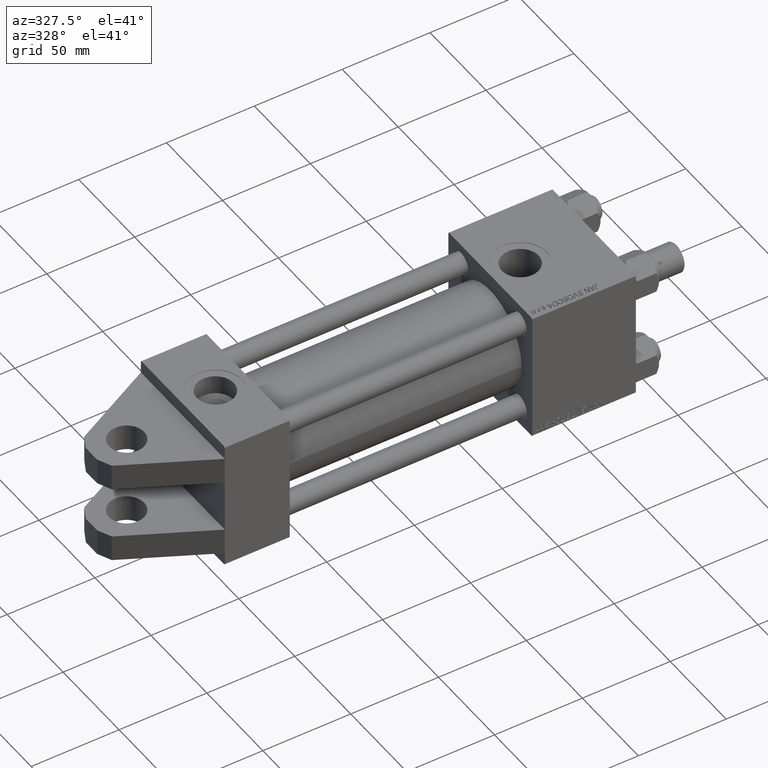
[diagram: clean part render]
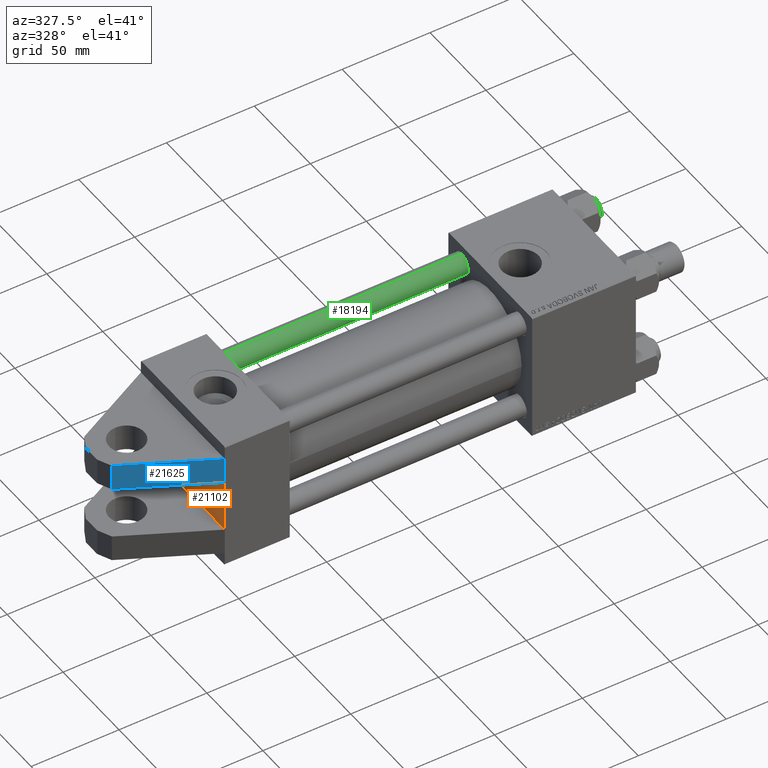
[diagram: same view with three faces highlighted in distinct colors, each labeled with its STEP entity id]
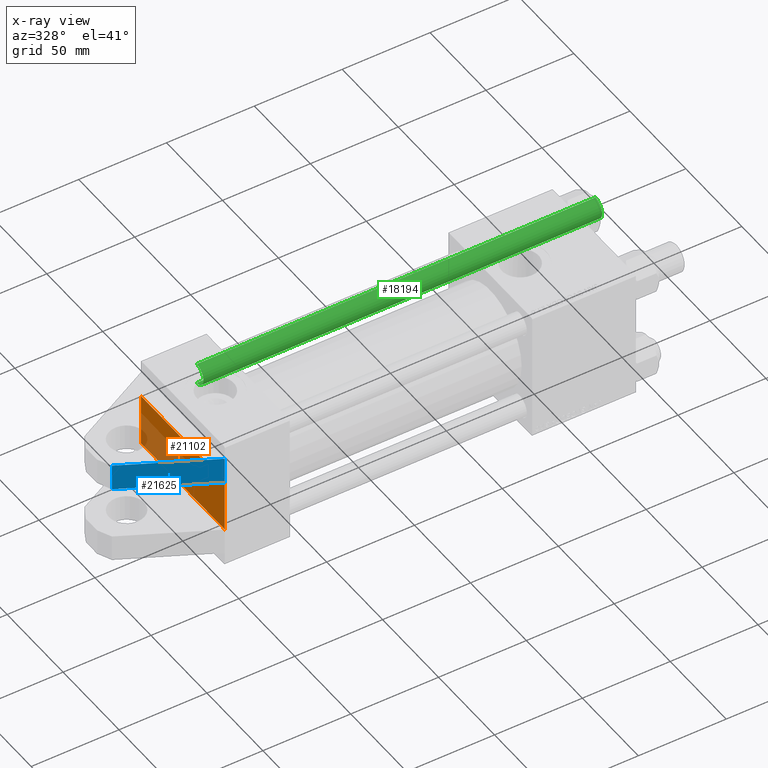
[diagram: x-ray of the same camera — body ghosted, the three highlighted faces saturated]
A machine part, auxiliary view with three faces highlighted in distinct colors.
The next image is the same camera in x-ray (body ghosted, the three faces saturated) — at least one of them is partly hidden behind the body in this view.
Their STEP definitions:

[orange] entity #21102 — the highlighted planar face has unit normal (-1, 0, -0).
#773 = CARTESIAN_POINT ( 'NONE',  ( 0.000000000000000000, 37.49999999999999289, 37.50000000000000000 ) ) ;
#2028 = DIRECTION ( 'NONE',  ( 0.000000000000000000, 0.000000000000000000, -1.000000000000000000 ) ) ;
#3004 = VERTEX_POINT ( 'NONE', #10784 ) ;
#3456 = ORIENTED_EDGE ( 'NONE', *, *, #20641, .F. ) ;
#4871 = VECTOR ( 'NONE', #2028, 1000.000000000000000 ) ;
#6548 = ORIENTED_EDGE ( 'NONE', *, *, #14387, .T. ) ;
#7422 = CARTESIAN_POINT ( 'NONE',  ( 0.000000000000000000, -15.00000000000000000, 37.49999999999999289 ) ) ;
#7621 = DIRECTION ( 'NONE',  ( -0.000000000000000000, 0.000000000000000000, 1.000000000000000000 ) ) ;
#7983 = AXIS2_PLACEMENT_3D ( 'NONE', #28740, #28205, #7621 ) ;
#8666 = FACE_OUTER_BOUND ( 'NONE', #37384, .T. ) ;
#8670 = LINE ( 'NONE', #773, #48037 ) ;
#10760 = CARTESIAN_POINT ( 'NONE',  ( 0.000000000000000000, 37.49999999999999289, -37.50000000000000000 ) ) ;
#10784 = CARTESIAN_POINT ( 'NONE',  ( 0.000000000000000000, 15.00000000000000000, 37.50000000000000000 ) ) ;
#11243 = CARTESIAN_POINT ( 'NONE',  ( 0.000000000000000000, 15.00000000000000000, -37.50000000000000000 ) ) ;
#12817 = LINE ( 'NONE', #45788, #14684 ) ;
#14387 = EDGE_CURVE ( 'NONE', #3004, #23934, #14417, .T. ) ;
#14417 = LINE ( 'NONE', #22091, #4871 ) ;
#14684 = VECTOR ( 'NONE', #29184, 1000.000000000000000 ) ;
#19207 = LINE ( 'NONE', #10760, #31789 ) ;
#20641 = EDGE_CURVE ( 'NONE', #48177, #26656, #12817, .T. ) ;
#21102 = ADVANCED_FACE ( 'NONE', ( #8666 ), #24253, .T. ) ;
#22091 = CARTESIAN_POINT ( 'NONE',  ( 0.000000000000000000, 15.00000000000000000, 37.49999999999999289 ) ) ;
#23934 = VERTEX_POINT ( 'NONE', #11243 ) ;
#24253 = PLANE ( 'NONE',  #7983 ) ;
#25577 = CARTESIAN_POINT ( 'NONE',  ( 0.000000000000000000, -15.00000000000000000, -37.50000000000000711 ) ) ;
#26656 = VERTEX_POINT ( 'NONE', #25577 ) ;
#28205 = DIRECTION ( 'NONE',  ( -1.000000000000000000, 0.000000000000000000, -0.000000000000000000 ) ) ;
#28740 = CARTESIAN_POINT ( 'NONE',  ( 0.000000000000000000, 0.000000000000000000, 0.000000000000000000 ) ) ;
#29184 = DIRECTION ( 'NONE',  ( 0.000000000000000000, 0.000000000000000000, -1.000000000000000000 ) ) ;
#30266 = EDGE_CURVE ( 'NONE', #23934, #26656, #19207, .T. ) ;
#31789 = VECTOR ( 'NONE', #38734, 1000.000000000000000 ) ;
#34506 = DIRECTION ( 'NONE',  ( 0.000000000000000000, -1.000000000000000000, -9.251858538542971581E-17 ) ) ;
#37384 = EDGE_LOOP ( 'NONE', ( #46541, #3456, #49510, #6548 ) ) ;
#38734 = DIRECTION ( 'NONE',  ( 0.000000000000000000, -1.000000000000000000, -9.251858538542972814E-17 ) ) ;
#45788 = CARTESIAN_POINT ( 'NONE',  ( 0.000000000000000000, -15.00000000000000000, 37.49999999999999289 ) ) ;
#46541 = ORIENTED_EDGE ( 'NONE', *, *, #30266, .T. ) ;
#48037 = VECTOR ( 'NONE', #34506, 1000.000000000000000 ) ;
#48177 = VERTEX_POINT ( 'NONE', #7422 ) ;
#49510 = ORIENTED_EDGE ( 'NONE', *, *, #49753, .F. ) ;
#49753 = EDGE_CURVE ( 'NONE', #3004, #48177, #8670, .T. ) ;

[blue] entity #21625 — the highlighted planar face has unit normal (-0.4566, -0.8897, -0).
#1498 = DIRECTION ( 'NONE',  ( -0.8896669897448514774, 0.000000000000000000, 0.4566099510066927158 ) ) ;
#1560 = DIRECTION ( 'NONE',  ( -0.000000000000000000, 1.000000000000000000, -0.000000000000000000 ) ) ;
#4067 = DIRECTION ( 'NONE',  ( -0.4566099510066927158, 0.000000000000000000, -0.8896669897448514774 ) ) ;
#4241 = VERTEX_POINT ( 'NONE', #22970 ) ;
#4766 = EDGE_CURVE ( 'NONE', #46008, #39598, #26025, .T. ) ;
#5253 = CARTESIAN_POINT ( 'NONE',  ( 0.000000000000000000, -30.00000000000000000, -37.50000000000000711 ) ) ;
#7596 = VECTOR ( 'NONE', #24002, 1000.000000000000000 ) ;
#8014 = FACE_OUTER_BOUND ( 'NONE', #39154, .T. ) ;
#10624 = CARTESIAN_POINT ( 'NONE',  ( -48.43732805352595960, -30.00000000000000000, -12.64017464471899110 ) ) ;
#15831 = ORIENTED_EDGE ( 'NONE', *, *, #4766, .T. ) ;
#19952 = CARTESIAN_POINT ( 'NONE',  ( 0.000000000000000000, -30.00000000000000000, -37.50000000000000711 ) ) ;
#20050 = LINE ( 'NONE', #44325, #7596 ) ;
#21363 = LINE ( 'NONE', #33488, #32847 ) ;
#21560 = CARTESIAN_POINT ( 'NONE',  ( -48.43732805352595960, -30.00000000000000000, -12.64017464471899110 ) ) ;
#21625 = ADVANCED_FACE ( 'NONE', ( #8014 ), #24129, .T. ) ;
#22970 = CARTESIAN_POINT ( 'NONE',  ( -48.43732805352595960, -15.00000000000000000, -12.64017464471899110 ) ) ;
#24002 = DIRECTION ( 'NONE',  ( -0.000000000000000000, 1.000000000000000000, -0.000000000000000000 ) ) ;
#24007 = AXIS2_PLACEMENT_3D ( 'NONE', #40217, #4067, #40482 ) ;
#24129 = PLANE ( 'NONE',  #24007 ) ;
#25577 = CARTESIAN_POINT ( 'NONE',  ( 0.000000000000000000, -15.00000000000000000, -37.50000000000000711 ) ) ;
#26025 = LINE ( 'NONE', #21560, #35782 ) ;
#26656 = VERTEX_POINT ( 'NONE', #25577 ) ;
#28523 = VECTOR ( 'NONE', #1560, 1000.000000000000000 ) ;
#32847 = VECTOR ( 'NONE', #38478, 1000.000000000000000 ) ;
#33488 = CARTESIAN_POINT ( 'NONE',  ( -48.43732805352595960, -15.00000000000000000, -12.64017464471899110 ) ) ;
#35500 = ORIENTED_EDGE ( 'NONE', *, *, #50646, .T. ) ;
#35782 = VECTOR ( 'NONE', #1498, 1000.000000000000000 ) ;
#36032 = EDGE_CURVE ( 'NONE', #26656, #4241, #21363, .T. ) ;
#36124 = EDGE_CURVE ( 'NONE', #46008, #26656, #41417, .T. ) ;
#38478 = DIRECTION ( 'NONE',  ( -0.8896669897448514774, 0.000000000000000000, 0.4566099510066927158 ) ) ;
#39154 = EDGE_LOOP ( 'NONE', ( #51445, #43886, #15831, #35500 ) ) ;
#39598 = VERTEX_POINT ( 'NONE', #10624 ) ;
#40217 = CARTESIAN_POINT ( 'NONE',  ( -48.43732805352595960, -30.00000000000000000, -12.64017464471899110 ) ) ;
#40482 = DIRECTION ( 'NONE',  ( -0.8896669897448514774, 0.000000000000000000, 0.4566099510066927158 ) ) ;
#41417 = LINE ( 'NONE', #5253, #28523 ) ;
#43886 = ORIENTED_EDGE ( 'NONE', *, *, #36124, .F. ) ;
#44325 = CARTESIAN_POINT ( 'NONE',  ( -48.43732805352595960, -30.00000000000000000, -12.64017464471899110 ) ) ;
#46008 = VERTEX_POINT ( 'NONE', #19952 ) ;
#50646 = EDGE_CURVE ( 'NONE', #39598, #4241, #20050, .T. ) ;
#51445 = ORIENTED_EDGE ( 'NONE', *, *, #36032, .F. ) ;

[green] entity #18194 — the highlighted cylindrical surface (edge-blend (fillet) strip) has radius 6 mm, axis along (-1, 0, -0).
#394 = VERTEX_POINT ( 'NONE', #45058 ) ;
#1979 = EDGE_CURVE ( 'NONE', #25581, #31529, #51469, .T. ) ;
#5654 = DIRECTION ( 'NONE',  ( 1.000000000000000000, 0.000000000000000000, 0.000000000000000000 ) ) ;
#8231 = ORIENTED_EDGE ( 'NONE', *, *, #30016, .T. ) ;
#8364 = ORIENTED_EDGE ( 'NONE', *, *, #10932, .T. ) ;
#8731 = ORIENTED_EDGE ( 'NONE', *, *, #24014, .T. ) ;
#10932 = EDGE_CURVE ( 'NONE', #25581, #394, #24033, .T. ) ;
#12396 = CIRCLE ( 'NONE', #37666, 6.000000000000000888 ) ;
#12918 = CARTESIAN_POINT ( 'NONE',  ( 0.000000000000000000, 0.000000000000000000, 0.5000000000001947331 ) ) ;
#18194 = ADVANCED_FACE ( 'NONE', ( #21785 ), #25747, .T. ) ;
#19871 = VECTOR ( 'NONE', #27879, 1000.000000000000000 ) ;
#20589 = DIRECTION ( 'NONE',  ( 1.000000000000000000, 0.000000000000000000, 0.000000000000000000 ) ) ;
#21313 = VERTEX_POINT ( 'NONE', #24977 ) ;
#21785 = FACE_OUTER_BOUND ( 'NONE', #36742, .T. ) ;
#24014 = EDGE_CURVE ( 'NONE', #394, #21313, #35013, .T. ) ;
#24033 = CIRCLE ( 'NONE', #40075, 6.000000000000000888 ) ;
#24977 = CARTESIAN_POINT ( 'NONE',  ( -6.000000000000000888, 0.000000000000000000, 0.5000000000001947331 ) ) ;
#25403 = ORIENTED_EDGE ( 'NONE', *, *, #1979, .F. ) ;
#25581 = VERTEX_POINT ( 'NONE', #47296 ) ;
#25747 = CYLINDRICAL_SURFACE ( 'NONE', #29794, 6.000000000000000888 ) ;
#27879 = DIRECTION ( 'NONE',  ( -0.000000000000000000, -0.000000000000000000, -1.000000000000000000 ) ) ;
#28466 = DIRECTION ( 'NONE',  ( 0.000000000000000000, 0.000000000000000000, -1.000000000000000000 ) ) ;
#29794 = AXIS2_PLACEMENT_3D ( 'NONE', #33651, #41834, #37870 ) ;
#30016 = EDGE_CURVE ( 'NONE', #21313, #31529, #12396, .T. ) ;
#31529 = VERTEX_POINT ( 'NONE', #49476 ) ;
#32192 = DIRECTION ( 'NONE',  ( -0.000000000000000000, -0.000000000000000000, 1.000000000000000000 ) ) ;
#33651 = CARTESIAN_POINT ( 'NONE',  ( 0.000000000000000000, 0.000000000000000000, 228.0000000000000000 ) ) ;
#35013 = LINE ( 'NONE', #51619, #19871 ) ;
#35387 = DIRECTION ( 'NONE',  ( -0.000000000000000000, -0.000000000000000000, -1.000000000000000000 ) ) ;
#36742 = EDGE_LOOP ( 'NONE', ( #25403, #8364, #8731, #8231 ) ) ;
#37666 = AXIS2_PLACEMENT_3D ( 'NONE', #12918, #32192, #20589 ) ;
#37870 = DIRECTION ( 'NONE',  ( -1.000000000000000000, 0.000000000000000000, 0.000000000000000000 ) ) ;
#40075 = AXIS2_PLACEMENT_3D ( 'NONE', #44301, #28466, #5654 ) ;
#41834 = DIRECTION ( 'NONE',  ( -0.000000000000000000, -0.000000000000000000, -1.000000000000000000 ) ) ;
#44301 = CARTESIAN_POINT ( 'NONE',  ( 0.000000000000000000, 0.000000000000000000, 227.5000000000000853 ) ) ;
#45058 = CARTESIAN_POINT ( 'NONE',  ( -6.000000000000000888, 0.000000000000000000, 227.5000000000000853 ) ) ;
#47296 = CARTESIAN_POINT ( 'NONE',  ( 6.000000000000000888, 7.347880794884119736E-16, 227.5000000000000853 ) ) ;
#47793 = CARTESIAN_POINT ( 'NONE',  ( 6.000000000000000888, 7.347880794884119736E-16, 228.0000000000000000 ) ) ;
#49476 = CARTESIAN_POINT ( 'NONE',  ( 6.000000000000000888, 7.347880794884119736E-16, 0.5000000000001947331 ) ) ;
#51469 = LINE ( 'NONE', #47793, #51671 ) ;
#51619 = CARTESIAN_POINT ( 'NONE',  ( -6.000000000000000888, 0.000000000000000000, 228.0000000000000000 ) ) ;
#51671 = VECTOR ( 'NONE', #35387, 1000.000000000000000 ) ;